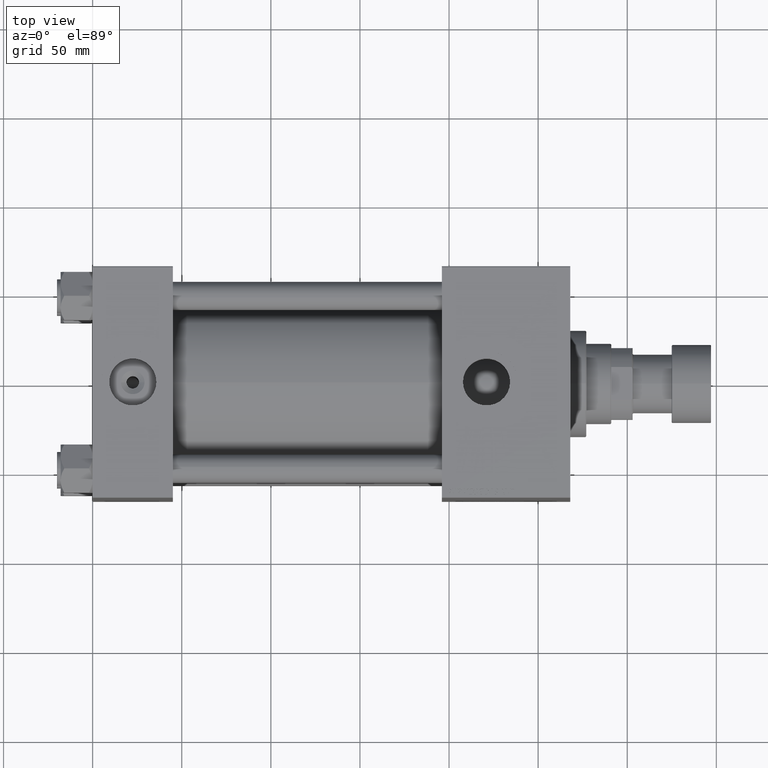
[diagram: clean part render]
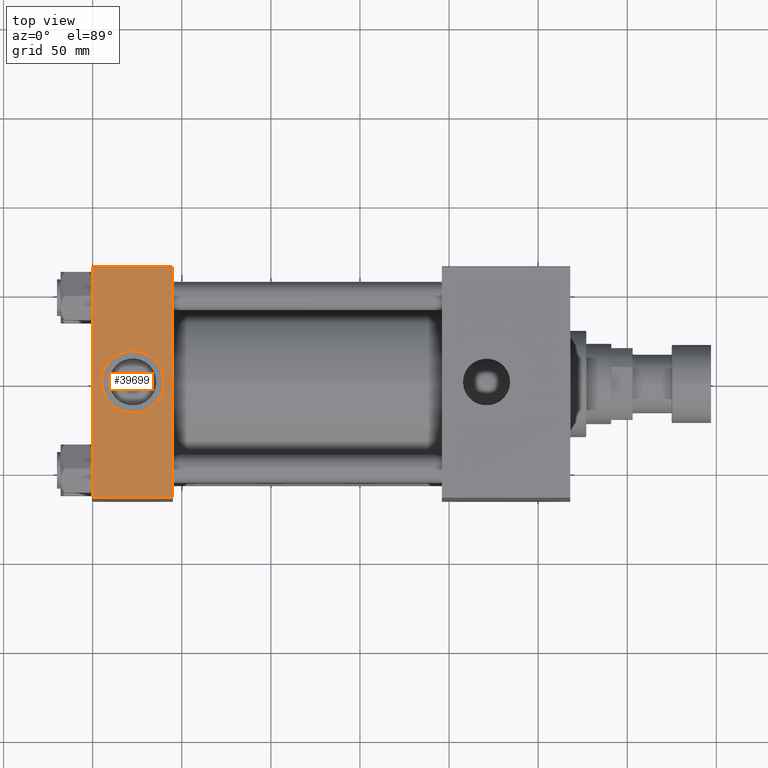
[diagram: same view with one face highlighted and labeled with its STEP entity id]
A machine part, top view. The second image highlights one B-rep face of the part: STEP entity #39699.
In plain terms, the highlighted planar face has unit normal (0, 0, -1).
Its self-contained STEP definition (entity closure, byte-faithful):
#726 = DIRECTION ( 'NONE',  ( 0.000000000000000000, 0.000000000000000000, 1.000000000000000000 ) ) ;
#1771 = DIRECTION ( 'NONE',  ( 0.000000000000000000, 1.000000000000000000, 1.067522139062650548E-16 ) ) ;
#2987 = AXIS2_PLACEMENT_3D ( 'NONE', #21913, #10560, #1771 ) ;
#4378 = FACE_BOUND ( 'NONE', #10978, .T. ) ;
#4400 = LINE ( 'NONE', #7511, #26597 ) ;
#4861 = DIRECTION ( 'NONE',  ( 1.000000000000000000, 0.000000000000000000, 0.000000000000000000 ) ) ;
#5131 = ORIENTED_EDGE ( 'NONE', *, *, #25049, .F. ) ;
#5386 = CARTESIAN_POINT ( 'NONE',  ( 4.999999999999997335, -6.530485481376167224E-15, 65.00000000000000000 ) ) ;
#5641 = PLANE ( 'NONE',  #2987 ) ;
#6710 = CARTESIAN_POINT ( 'NONE',  ( 0.000000000000000000, 64.49999999999997158, 65.00000000000001421 ) ) ;
#7258 = DIRECTION ( 'NONE',  ( -1.000000000000000000, 0.000000000000000000, 0.000000000000000000 ) ) ;
#7511 = CARTESIAN_POINT ( 'NONE',  ( 0.000000000000000000, 64.49999999999997158, 65.00000000000001421 ) ) ;
#8026 = CARTESIAN_POINT ( 'NONE',  ( 45.00000000000000000, 65.00000000000000000, 65.00000000000001421 ) ) ;
#8247 = DIRECTION ( 'NONE',  ( 0.000000000000000000, 0.000000000000000000, 1.000000000000000000 ) ) ;
#9528 = FACE_OUTER_BOUND ( 'NONE', #26310, .T. ) ;
#10560 = DIRECTION ( 'NONE',  ( 0.000000000000000000, 1.067522139062650548E-16, -1.000000000000000000 ) ) ;
#10978 = EDGE_LOOP ( 'NONE', ( #5131, #29142 ) ) ;
#13243 = CARTESIAN_POINT ( 'NONE',  ( 45.00000000000000000, -64.49999999999997158, 65.00000000000000000 ) ) ;
#15026 = DIRECTION ( 'NONE',  ( 0.000000000000000000, -1.000000000000000000, -1.067522139062650425E-16 ) ) ;
#16917 = VECTOR ( 'NONE', #40122, 1000.000000000000000 ) ;
#19054 = CIRCLE ( 'NONE', #25667, 17.50000000000000000 ) ;
#19141 = CARTESIAN_POINT ( 'NONE',  ( 0.000000000000000000, 65.00000000000000000, 65.00000000000001421 ) ) ;
#19378 = VECTOR ( 'NONE', #46806, 1000.000000000000000 ) ;
#19792 = EDGE_CURVE ( 'NONE', #23648, #48728, #38793, .T. ) ;
#21472 = CARTESIAN_POINT ( 'NONE',  ( 0.000000000000000000, -64.49999999999997158, 65.00000000000000000 ) ) ;
#21913 = CARTESIAN_POINT ( 'NONE',  ( 45.00000000000000000, 65.00000000000000000, 65.00000000000001421 ) ) ;
#22492 = ORIENTED_EDGE ( 'NONE', *, *, #31790, .T. ) ;
#23165 = VERTEX_POINT ( 'NONE', #33625 ) ;
#23648 = VERTEX_POINT ( 'NONE', #6710 ) ;
#25049 = EDGE_CURVE ( 'NONE', #23165, #43962, #47948, .T. ) ;
#25667 = AXIS2_PLACEMENT_3D ( 'NONE', #36894, #726, #4861 ) ;
#26310 = EDGE_LOOP ( 'NONE', ( #40206, #34594, #41095, #22492 ) ) ;
#26567 = VERTEX_POINT ( 'NONE', #33037 ) ;
#26597 = VECTOR ( 'NONE', #7258, 1000.000000000000000 ) ;
#28400 = EDGE_CURVE ( 'NONE', #43962, #23165, #19054, .T. ) ;
#28945 = AXIS2_PLACEMENT_3D ( 'NONE', #47778, #8247, #43919 ) ;
#29142 = ORIENTED_EDGE ( 'NONE', *, *, #28400, .F. ) ;
#29361 = CARTESIAN_POINT ( 'NONE',  ( 45.00000000000000000, -64.49999999999997158, 65.00000000000000000 ) ) ;
#31481 = VERTEX_POINT ( 'NONE', #29361 ) ;
#31790 = EDGE_CURVE ( 'NONE', #26567, #23648, #4400, .T. ) ;
#33037 = CARTESIAN_POINT ( 'NONE',  ( 45.00000000000000000, 64.49999999999997158, 65.00000000000001421 ) ) ;
#33625 = CARTESIAN_POINT ( 'NONE',  ( 40.00000000000000000, -8.673617379884035472E-15, 65.00000000000000000 ) ) ;
#34594 = ORIENTED_EDGE ( 'NONE', *, *, #37496, .T. ) ;
#36894 = CARTESIAN_POINT ( 'NONE',  ( 22.50000000000000000, -8.673617379884035472E-15, 65.00000000000000000 ) ) ;
#37286 = LINE ( 'NONE', #13243, #16917 ) ;
#37496 = EDGE_CURVE ( 'NONE', #48728, #31481, #37286, .T. ) ;
#37649 = EDGE_CURVE ( 'NONE', #26567, #31481, #39047, .T. ) ;
#38793 = LINE ( 'NONE', #19141, #46957 ) ;
#39047 = LINE ( 'NONE', #8026, #19378 ) ;
#39699 = ADVANCED_FACE ( 'NONE', ( #4378, #9528 ), #5641, .F. ) ;
#40122 = DIRECTION ( 'NONE',  ( 1.000000000000000000, 0.000000000000000000, 0.000000000000000000 ) ) ;
#40206 = ORIENTED_EDGE ( 'NONE', *, *, #19792, .T. ) ;
#41095 = ORIENTED_EDGE ( 'NONE', *, *, #37649, .F. ) ;
#43919 = DIRECTION ( 'NONE',  ( 1.000000000000000000, 0.000000000000000000, 0.000000000000000000 ) ) ;
#43962 = VERTEX_POINT ( 'NONE', #5386 ) ;
#46806 = DIRECTION ( 'NONE',  ( 0.000000000000000000, -1.000000000000000000, -1.067522139062650425E-16 ) ) ;
#46957 = VECTOR ( 'NONE', #15026, 1000.000000000000000 ) ;
#47778 = CARTESIAN_POINT ( 'NONE',  ( 22.50000000000000000, -8.673617379884035472E-15, 65.00000000000000000 ) ) ;
#47948 = CIRCLE ( 'NONE', #28945, 17.50000000000000000 ) ;
#48728 = VERTEX_POINT ( 'NONE', #21472 ) ;